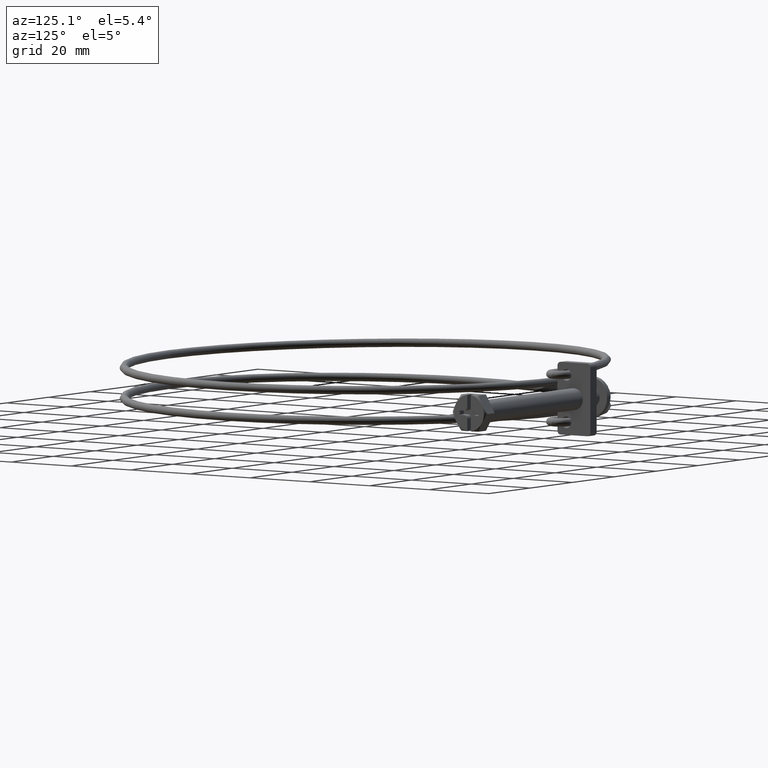
[diagram: clean part render]
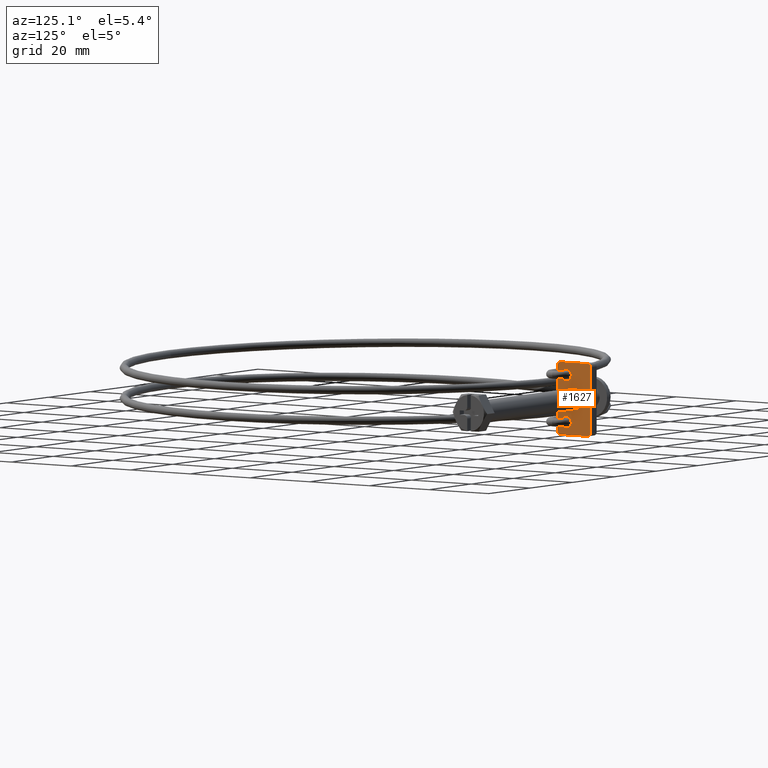
[diagram: same view with one face highlighted and labeled with its STEP entity id]
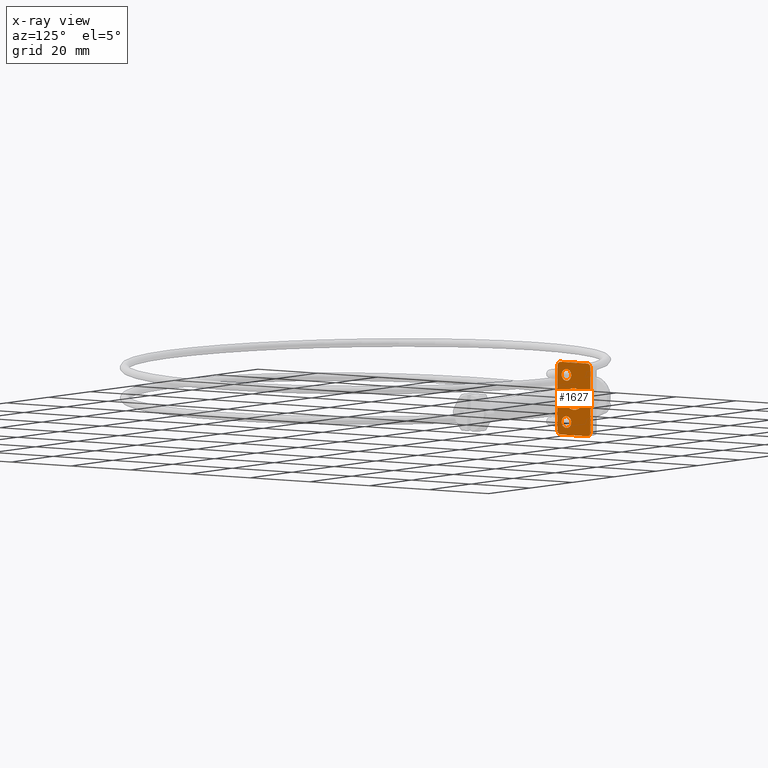
[diagram: x-ray of the same camera — body ghosted, the highlighted face saturated]
A machine part, auxiliary view. The second image highlights one B-rep face of the part: STEP entity #1627.
The next image is the same camera in x-ray: the body ghosted, the highlighted face saturated — about 0% of this face is hidden behind the body in this view.
In plain terms, the highlighted planar face has unit normal (1, 0, 0).
Its self-contained STEP definition (entity closure, byte-faithful):
#11 = ORIENTED_EDGE ( 'NONE', *, *, #2427, .T. ) ;
#44 = ORIENTED_EDGE ( 'NONE', *, *, #764, .F. ) ;
#55 = DIRECTION ( 'NONE',  ( 1.000000000000000000, 0.0000000000000000000, 0.0000000000000000000 ) ) ;
#87 = PLANE ( 'NONE',  #1461 ) ;
#119 = ORIENTED_EDGE ( 'NONE', *, *, #2284, .T. ) ;
#198 = EDGE_CURVE ( 'NONE', #2434, #353, #1556, .T. ) ;
#286 = CARTESIAN_POINT ( 'NONE',  ( 1.500000000000000000, 5.500000000000000000, 9.000000000000001800 ) ) ;
#300 = DIRECTION ( 'NONE',  ( 0.0000000000000000000, 0.0000000000000000000, -1.000000000000000000 ) ) ;
#308 = VERTEX_POINT ( 'NONE', #1022 ) ;
#341 = DIRECTION ( 'NONE',  ( 0.0000000000000000000, 0.0000000000000000000, -1.000000000000000000 ) ) ;
#353 = VERTEX_POINT ( 'NONE', #2181 ) ;
#364 = CIRCLE ( 'NONE', #1780, 3.000000000000000400 ) ;
#404 = CARTESIAN_POINT ( 'NONE',  ( 1.500000000000000000, 4.500000000000000000, 9.000000000000001800 ) ) ;
#450 = DIRECTION ( 'NONE',  ( 0.0000000000000000000, 0.0000000000000000000, -1.000000000000000000 ) ) ;
#453 = CARTESIAN_POINT ( 'NONE',  ( 1.500000000000000000, 3.673940397442060400E-016, 3.000000000000000400 ) ) ;
#493 = VERTEX_POINT ( 'NONE', #502 ) ;
#502 = CARTESIAN_POINT ( 'NONE',  ( 1.500000000000000000, 0.0000000000000000000, -3.000000000000000400 ) ) ;
#503 = FACE_BOUND ( 'NONE', #2362, .T. ) ;
#514 = VERTEX_POINT ( 'NONE', #1831 ) ;
#535 = AXIS2_PLACEMENT_3D ( 'NONE', #3032, #1589, #1758 ) ;
#594 = DIRECTION ( 'NONE',  ( 1.000000000000000000, 0.0000000000000000000, 0.0000000000000000000 ) ) ;
#639 = DIRECTION ( 'NONE',  ( 0.0000000000000000000, 0.0000000000000000000, -1.000000000000000000 ) ) ;
#648 = VERTEX_POINT ( 'NONE', #2743 ) ;
#661 = DIRECTION ( 'NONE',  ( -0.0000000000000000000, -0.0000000000000000000, 1.000000000000000000 ) ) ;
#676 = DIRECTION ( 'NONE',  ( 0.0000000000000000000, 0.0000000000000000000, -1.000000000000000000 ) ) ;
#754 = CARTESIAN_POINT ( 'NONE',  ( 1.500000000000000000, 5.500000000000000000, 10.00000000000000000 ) ) ;
#761 = CIRCLE ( 'NONE', #2482, 1.000000000000000900 ) ;
#764 = EDGE_CURVE ( 'NONE', #1786, #648, #2085, .T. ) ;
#768 = DIRECTION ( 'NONE',  ( 0.0000000000000000000, 0.0000000000000000000, -1.000000000000000000 ) ) ;
#776 = DIRECTION ( 'NONE',  ( 0.0000000000000000000, 0.0000000000000000000, -1.000000000000000000 ) ) ;
#838 = DIRECTION ( 'NONE',  ( 0.0000000000000000000, 0.0000000000000000000, -1.000000000000000000 ) ) ;
#853 = DIRECTION ( 'NONE',  ( 1.000000000000000000, 0.0000000000000000000, 0.0000000000000000000 ) ) ;
#874 = VERTEX_POINT ( 'NONE', #1733 ) ;
#890 = CIRCLE ( 'NONE', #1034, 0.9999999999999991100 ) ;
#900 = CARTESIAN_POINT ( 'NONE',  ( 1.500000000000000000, 0.0000000000000000000, 0.0000000000000000000 ) ) ;
#915 = EDGE_CURVE ( 'NONE', #2940, #2247, #1046, .T. ) ;
#947 = ORIENTED_EDGE ( 'NONE', *, *, #974, .T. ) ;
#952 = VERTEX_POINT ( 'NONE', #2230 ) ;
#957 = DIRECTION ( 'NONE',  ( 1.000000000000000000, 0.0000000000000000000, 0.0000000000000000000 ) ) ;
#974 = EDGE_CURVE ( 'NONE', #353, #3093, #890, .T. ) ;
#982 = ORIENTED_EDGE ( 'NONE', *, *, #198, .T. ) ;
#988 = VECTOR ( 'NONE', #1249, 1000.000000000000000 ) ;
#998 = CARTESIAN_POINT ( 'NONE',  ( 1.500000000000000000, -2.499999999999999100, -8.099999999999999600 ) ) ;
#1022 = CARTESIAN_POINT ( 'NONE',  ( 1.500000000000000000, -2.499999999999999100, 8.099999999999999600 ) ) ;
#1031 = AXIS2_PLACEMENT_3D ( 'NONE', #1320, #594, #838 ) ;
#1034 = AXIS2_PLACEMENT_3D ( 'NONE', #1797, #2047, #341 ) ;
#1046 = CIRCLE ( 'NONE', #535, 1.000000000000000900 ) ;
#1058 = CARTESIAN_POINT ( 'NONE',  ( 1.500000000000000000, -2.499999999999999100, -6.500000000000000000 ) ) ;
#1061 = EDGE_CURVE ( 'NONE', #648, #1786, #1396, .T. ) ;
#1079 = FACE_OUTER_BOUND ( 'NONE', #1744, .T. ) ;
#1088 = DIRECTION ( 'NONE',  ( 1.000000000000000000, 0.0000000000000000000, 0.0000000000000000000 ) ) ;
#1144 = ORIENTED_EDGE ( 'NONE', *, *, #1649, .F. ) ;
#1154 = LINE ( 'NONE', #754, #988 ) ;
#1159 = CIRCLE ( 'NONE', #1345, 1.000000000000000900 ) ;
#1187 = CARTESIAN_POINT ( 'NONE',  ( 1.500000000000000000, -5.500000000000000000, 10.00000000000000000 ) ) ;
#1213 = ORIENTED_EDGE ( 'NONE', *, *, #1416, .F. ) ;
#1249 = DIRECTION ( 'NONE',  ( 0.0000000000000000000, -1.000000000000000000, 0.0000000000000000000 ) ) ;
#1262 = VECTOR ( 'NONE', #450, 1000.000000000000000 ) ;
#1296 = EDGE_LOOP ( 'NONE', ( #2977, #2661 ) ) ;
#1320 = CARTESIAN_POINT ( 'NONE',  ( 1.500000000000000000, 0.0000000000000000000, 0.0000000000000000000 ) ) ;
#1345 = AXIS2_PLACEMENT_3D ( 'NONE', #2547, #1088, #2781 ) ;
#1375 = DIRECTION ( 'NONE',  ( 1.000000000000000000, 0.0000000000000000000, 0.0000000000000000000 ) ) ;
#1396 = CIRCLE ( 'NONE', #1513, 1.599999999999999900 ) ;
#1408 = AXIS2_PLACEMENT_3D ( 'NONE', #2819, #1375, #3052 ) ;
#1416 = EDGE_CURVE ( 'NONE', #1487, #493, #2821, .T. ) ;
#1461 = AXIS2_PLACEMENT_3D ( 'NONE', #1772, #2387, #676 ) ;
#1487 = VERTEX_POINT ( 'NONE', #453 ) ;
#1513 = AXIS2_PLACEMENT_3D ( 'NONE', #2156, #957, #776 ) ;
#1556 = LINE ( 'NONE', #2021, #2138 ) ;
#1582 = AXIS2_PLACEMENT_3D ( 'NONE', #1058, #2749, #300 ) ;
#1589 = DIRECTION ( 'NONE',  ( 1.000000000000000000, 0.0000000000000000000, 0.0000000000000000000 ) ) ;
#1598 = VERTEX_POINT ( 'NONE', #286 ) ;
#1627 = ADVANCED_FACE ( 'NONE', ( #2925, #503, #2302, #1079 ), #87, .T. ) ;
#1649 = EDGE_CURVE ( 'NONE', #493, #1487, #364, .T. ) ;
#1666 = CARTESIAN_POINT ( 'NONE',  ( 1.500000000000000000, -4.499999999999999100, -10.00000000000000000 ) ) ;
#1733 = CARTESIAN_POINT ( 'NONE',  ( 1.500000000000000000, -5.500000000000000000, -9.000000000000003600 ) ) ;
#1741 = EDGE_CURVE ( 'NONE', #308, #514, #2079, .T. ) ;
#1744 = EDGE_LOOP ( 'NONE', ( #11, #2210, #982, #947, #2457, #119, #2134, #2486 ) ) ;
#1749 = LINE ( 'NONE', #1187, #1262 ) ;
#1758 = DIRECTION ( 'NONE',  ( 0.0000000000000000000, 0.0000000000000000000, -1.000000000000000000 ) ) ;
#1772 = CARTESIAN_POINT ( 'NONE',  ( 1.500000000000000000, 0.0000000000000000000, 0.0000000000000000000 ) ) ;
#1780 = AXIS2_PLACEMENT_3D ( 'NONE', #900, #853, #2159 ) ;
#1786 = VERTEX_POINT ( 'NONE', #998 ) ;
#1797 = CARTESIAN_POINT ( 'NONE',  ( 1.500000000000000000, 4.500000000000000000, -9.000000000000003600 ) ) ;
#1831 = CARTESIAN_POINT ( 'NONE',  ( 1.500000000000000000, -2.499999999999999100, 4.899999999999999500 ) ) ;
#1938 = ORIENTED_EDGE ( 'NONE', *, *, #1061, .F. ) ;
#2021 = CARTESIAN_POINT ( 'NONE',  ( 1.500000000000000000, 5.500000000000000000, -10.00000000000000000 ) ) ;
#2047 = DIRECTION ( 'NONE',  ( 1.000000000000000000, 0.0000000000000000000, 0.0000000000000000000 ) ) ;
#2079 = CIRCLE ( 'NONE', #2440, 1.599999999999999900 ) ;
#2085 = CIRCLE ( 'NONE', #1582, 1.599999999999999900 ) ;
#2106 = DIRECTION ( 'NONE',  ( 1.000000000000000000, 0.0000000000000000000, 0.0000000000000000000 ) ) ;
#2134 = ORIENTED_EDGE ( 'NONE', *, *, #3084, .T. ) ;
#2138 = VECTOR ( 'NONE', #3028, 1000.000000000000000 ) ;
#2156 = CARTESIAN_POINT ( 'NONE',  ( 1.500000000000000000, -2.499999999999999100, -6.500000000000000000 ) ) ;
#2159 = DIRECTION ( 'NONE',  ( 0.0000000000000000000, 0.0000000000000000000, -1.000000000000000000 ) ) ;
#2181 = CARTESIAN_POINT ( 'NONE',  ( 1.500000000000000000, 4.500000000000000000, -10.00000000000000000 ) ) ;
#2185 = EDGE_CURVE ( 'NONE', #874, #2434, #1159, .T. ) ;
#2210 = ORIENTED_EDGE ( 'NONE', *, *, #2185, .T. ) ;
#2230 = CARTESIAN_POINT ( 'NONE',  ( 1.500000000000000000, 4.500000000000000000, 10.00000000000000000 ) ) ;
#2247 = VERTEX_POINT ( 'NONE', #2792 ) ;
#2284 = EDGE_CURVE ( 'NONE', #1598, #952, #761, .T. ) ;
#2302 = FACE_BOUND ( 'NONE', #1296, .T. ) ;
#2318 = EDGE_CURVE ( 'NONE', #3093, #1598, #3111, .T. ) ;
#2362 = EDGE_LOOP ( 'NONE', ( #44, #1938 ) ) ;
#2387 = DIRECTION ( 'NONE',  ( 1.000000000000000000, 0.0000000000000000000, 0.0000000000000000000 ) ) ;
#2427 = EDGE_CURVE ( 'NONE', #2247, #874, #1749, .T. ) ;
#2434 = VERTEX_POINT ( 'NONE', #1666 ) ;
#2440 = AXIS2_PLACEMENT_3D ( 'NONE', #2701, #55, #768 ) ;
#2457 = ORIENTED_EDGE ( 'NONE', *, *, #2318, .T. ) ;
#2482 = AXIS2_PLACEMENT_3D ( 'NONE', #404, #2106, #639 ) ;
#2486 = ORIENTED_EDGE ( 'NONE', *, *, #915, .T. ) ;
#2547 = CARTESIAN_POINT ( 'NONE',  ( 1.500000000000000000, -4.499999999999999100, -9.000000000000001800 ) ) ;
#2566 = VECTOR ( 'NONE', #661, 1000.000000000000000 ) ;
#2601 = CARTESIAN_POINT ( 'NONE',  ( 1.500000000000000000, 5.500000000000000000, 10.00000000000000000 ) ) ;
#2620 = EDGE_LOOP ( 'NONE', ( #1144, #1213 ) ) ;
#2661 = ORIENTED_EDGE ( 'NONE', *, *, #1741, .F. ) ;
#2697 = CARTESIAN_POINT ( 'NONE',  ( 1.500000000000000000, 5.500000000000000000, -9.000000000000003600 ) ) ;
#2701 = CARTESIAN_POINT ( 'NONE',  ( 1.500000000000000000, -2.499999999999999100, 6.500000000000000000 ) ) ;
#2743 = CARTESIAN_POINT ( 'NONE',  ( 1.500000000000000000, -2.499999999999999100, -4.899999999999998600 ) ) ;
#2749 = DIRECTION ( 'NONE',  ( 1.000000000000000000, 0.0000000000000000000, 0.0000000000000000000 ) ) ;
#2761 = CARTESIAN_POINT ( 'NONE',  ( 1.500000000000000000, -4.499999999999999100, 10.00000000000000000 ) ) ;
#2781 = DIRECTION ( 'NONE',  ( 0.0000000000000000000, 0.0000000000000000000, -1.000000000000000000 ) ) ;
#2792 = CARTESIAN_POINT ( 'NONE',  ( 1.500000000000000000, -5.500000000000000000, 9.000000000000001800 ) ) ;
#2819 = CARTESIAN_POINT ( 'NONE',  ( 1.500000000000000000, -2.499999999999999100, 6.500000000000000000 ) ) ;
#2821 = CIRCLE ( 'NONE', #1031, 3.000000000000000400 ) ;
#2925 = FACE_BOUND ( 'NONE', #2620, .T. ) ;
#2940 = VERTEX_POINT ( 'NONE', #2761 ) ;
#2977 = ORIENTED_EDGE ( 'NONE', *, *, #3041, .F. ) ;
#2987 = CIRCLE ( 'NONE', #1408, 1.599999999999999900 ) ;
#3028 = DIRECTION ( 'NONE',  ( -0.0000000000000000000, 1.000000000000000000, -0.0000000000000000000 ) ) ;
#3032 = CARTESIAN_POINT ( 'NONE',  ( 1.500000000000000000, -4.500000000000000000, 9.000000000000001800 ) ) ;
#3041 = EDGE_CURVE ( 'NONE', #514, #308, #2987, .T. ) ;
#3052 = DIRECTION ( 'NONE',  ( 0.0000000000000000000, 0.0000000000000000000, -1.000000000000000000 ) ) ;
#3084 = EDGE_CURVE ( 'NONE', #952, #2940, #1154, .T. ) ;
#3093 = VERTEX_POINT ( 'NONE', #2697 ) ;
#3111 = LINE ( 'NONE', #2601, #2566 ) ;